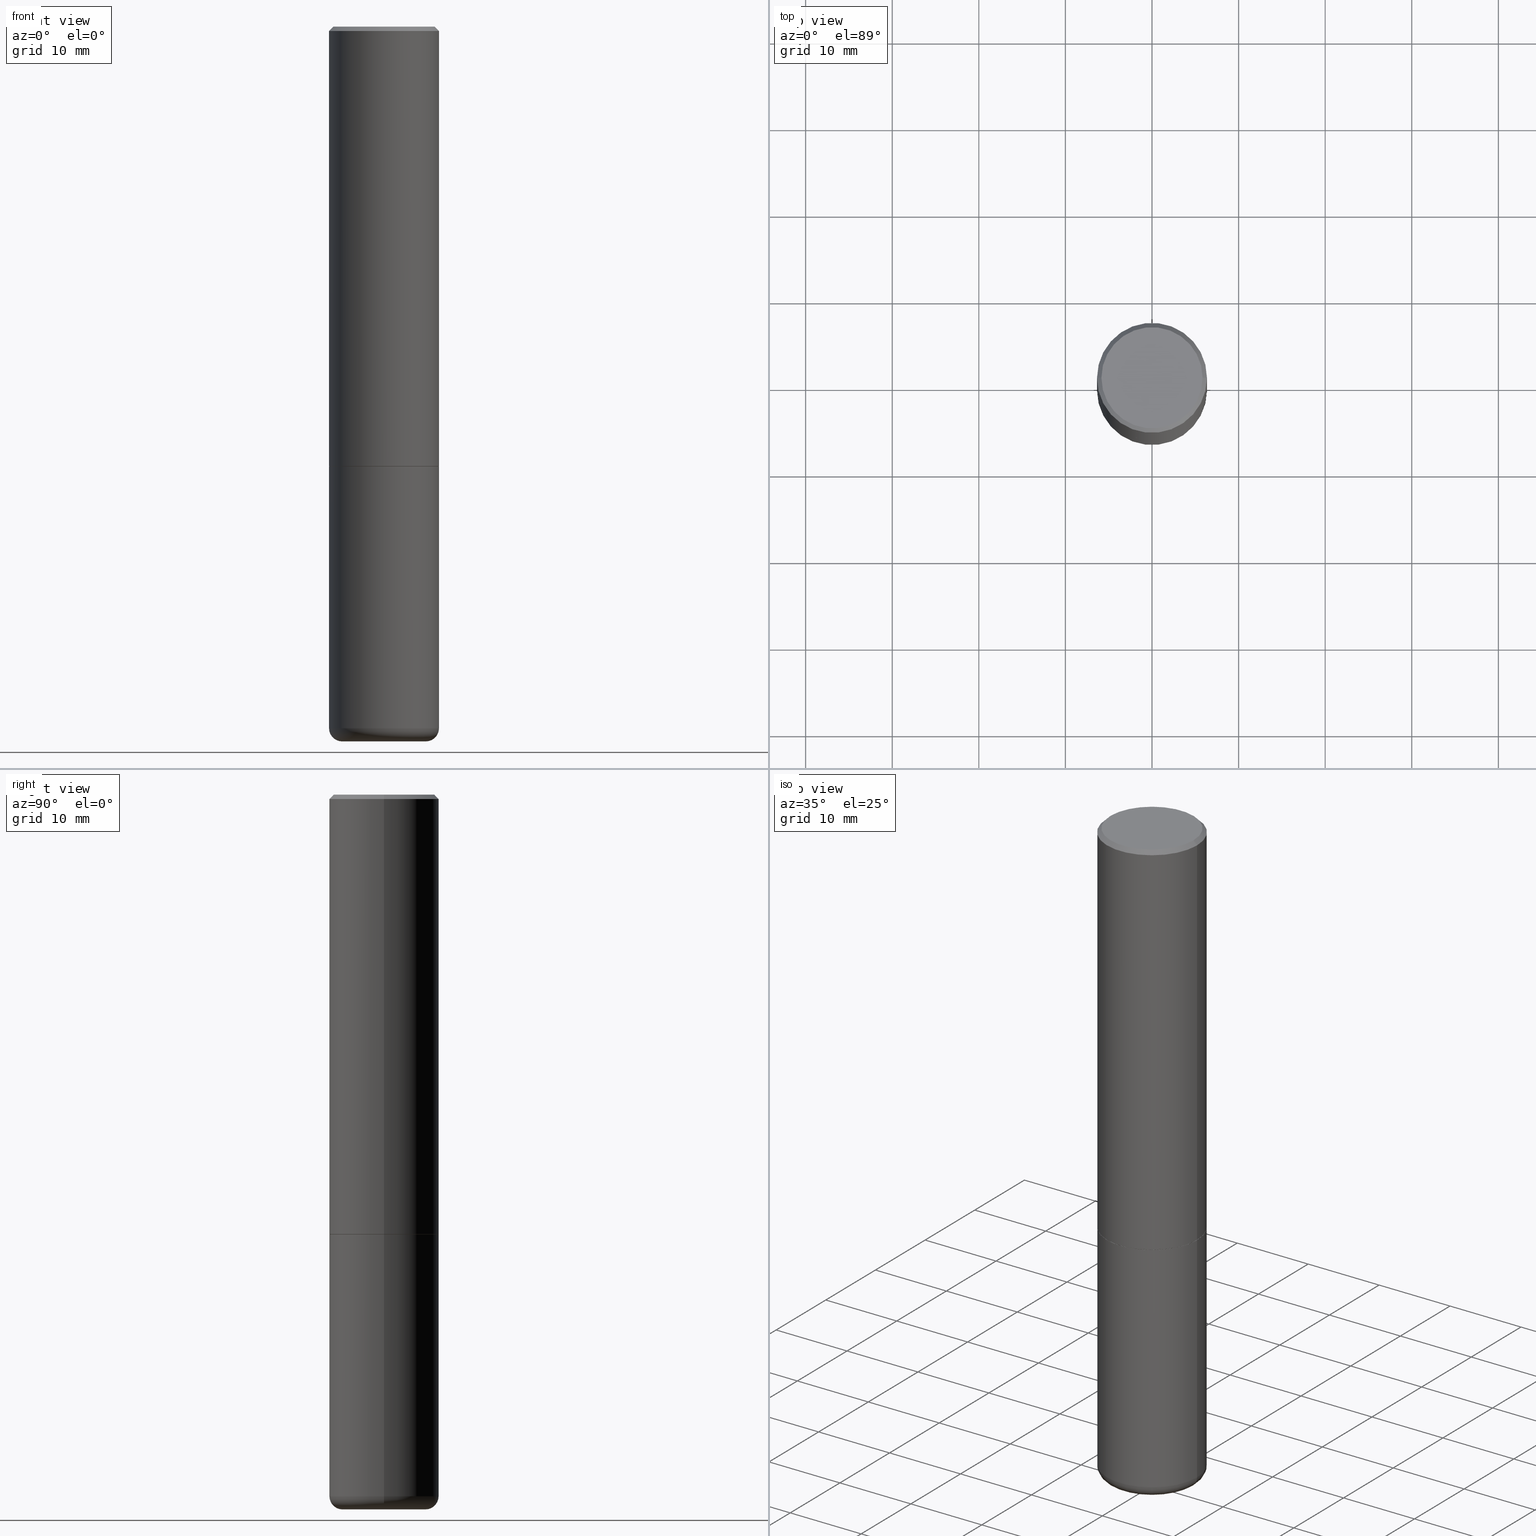
[diagram: canonical four-view strip — front | top / right | iso, engineering-drawing reading convention]
A machine part, canonical four-view strip (front | top / right | iso — engineering-drawing reading convention). The complete STEP part file that produces these views, byte-faithful:
ISO-10303-21;
HEADER;
FILE_DESCRIPTION (( 'STEP AP203' ),
    '1' );
FILE_NAME ('34780.STEP',
    '2022-11-02T20:16:34',
    ( '' ),
    ( '' ),
    'SwSTEP 2.0',
    'SolidWorks 2022',
    '' );
FILE_SCHEMA (( 'CONFIG_CONTROL_DESIGN' ));
ENDSEC;

DATA;
#1 =( NAMED_UNIT ( * ) SI_UNIT ( $, .STERADIAN. ) SOLID_ANGLE_UNIT ( ) );
#2 = APPROVAL_PERSON_ORGANIZATION ( #99, #250, #251 ) ;
#3 = DIRECTION ( 'NONE',  ( 1.000000000000000000, -6.982962677686265133E-15, 4.883557194083111780E-29 ) ) ;
#4 = ADVANCED_FACE ( 'NONE', ( #457 ), #92, .F. ) ;
#5 = EDGE_LOOP ( 'NONE', ( #60, #55, #91 ) ) ;
#6 = EDGE_CURVE ( 'NONE', #397, #482, #162, .T. ) ;
#7 = CONICAL_SURFACE ( 'NONE', #283, 0.1894764078700981180, 1.562069680534929894 ) ;
#8 = ORIENTED_EDGE ( 'NONE', *, *, #330, .F. ) ;
#9 = DIRECTION ( 'NONE',  ( -2.445468806185136597E-29, 3.491481338843145583E-15, 1.000000000000000000 ) ) ;
#10 = EDGE_LOOP ( 'NONE', ( #209, #26 ) ) ;
#11 = VECTOR ( 'NONE', #343, 39.37007874015748143 ) ;
#12 = PRODUCT_RELATED_PRODUCT_CATEGORY ( 'detail', '', ( #389 ) ) ;
#13 = CONICAL_SURFACE ( 'NONE', #331, 0.2489999999999996660, 0.7853981633974141952 ) ;
#14 = CIRCLE ( 'NONE', #87, 0.1894764078700981180 ) ;
#15 = ADVANCED_FACE ( 'NONE', ( #353 ), #431, .T. ) ;
#16 = ORIENTED_EDGE ( 'NONE', *, *, #367, .F. ) ;
#17 = DIRECTION ( 'NONE',  ( -2.445468806185136597E-29, 3.491481338843145583E-15, 1.000000000000000000 ) ) ;
#18 = ORIENTED_EDGE ( 'NONE', *, *, #312, .F. ) ;
#19 = ADVANCED_FACE ( 'NONE', ( #465 ), #136, .T. ) ;
#20 = ORIENTED_EDGE ( 'NONE', *, *, #396, .F. ) ;
#21 = APPROVAL_PERSON_ORGANIZATION ( #385, #471, #390 ) ;
#22 = DIRECTION ( 'NONE',  ( 1.000000000000000000, -6.982962677686265133E-15, 4.883557194083111780E-29 ) ) ;
#23 = ORIENTED_EDGE ( 'NONE', *, *, #57, .T. ) ;
#24 = DIRECTION ( 'NONE',  ( 1.000000000000000000, -6.982962677686266711E-15, 4.876176775795935232E-29 ) ) ;
#25 = FACE_OUTER_BOUND ( 'NONE', #308, .T. ) ;
#26 = ORIENTED_EDGE ( 'NONE', *, *, #360, .F. ) ;
#27 = DIRECTION ( 'NONE',  ( 1.000000000000000000, -6.982962677686269077E-15, 0.000000000000000000 ) ) ;
#28 = FACE_OUTER_BOUND ( 'NONE', #437, .T. ) ;
#29 = APPROVAL_DATE_TIME ( #192, #98 ) ;
#30 = EDGE_LOOP ( 'NONE', ( #242, #139, #284, #458 ) ) ;
#31 = DIRECTION ( 'NONE',  ( -2.445468806185136597E-29, 3.491481338843145583E-15, 1.000000000000000000 ) ) ;
#32 = CONICAL_SURFACE ( 'NONE', #112, 0.1628114078700980683, 1.535889741755009918 ) ;
#33 = APPROVAL_PERSON_ORGANIZATION ( #381, #98, #378 ) ;
#34 = LINE ( 'NONE', #148, #460 ) ;
#35 = DIMENSIONAL_EXPONENTS ( 1.000000000000000000, 0.000000000000000000, 0.000000000000000000, 0.000000000000000000, 0.000000000000000000, 0.000000000000000000, 0.000000000000000000 ) ;
#36 = FACE_OUTER_BOUND ( 'NONE', #319, .T. ) ;
#37 = DIRECTION ( 'NONE',  ( 1.000000000000000000, -6.982962677686266711E-15, 4.876176775795935793E-29 ) ) ;
#38 = DIRECTION ( 'NONE',  ( -2.445468806185136597E-29, 3.491481338843145583E-15, 1.000000000000000000 ) ) ;
#39 = DIRECTION ( 'NONE',  ( -2.445468806185136597E-29, 3.491481338843145583E-15, 1.000000000000000000 ) ) ;
#40 = CARTESIAN_POINT ( 'NONE',  ( 4.888492143564087591E-29, -6.979471196347447369E-15, -1.998999999999999888 ) ) ;
#41 = MANIFOLD_SOLID_BREP ( 'Body-Move/Copy2[2]', #153 ) ;
#42 = EDGE_CURVE ( 'NONE', #172, #382, #116, .T. ) ;
#43 = DIRECTION ( 'NONE',  ( 1.000000000000000000, -6.982962677686264344E-15, 0.000000000000000000 ) ) ;
#44 = CARTESIAN_POINT ( 'NONE',  ( -0.1894764078700981180, -1.002420766678126850E-14, -3.250000000000000000 ) ) ;
#45 = PERSON_AND_ORGANIZATION ( #480, #321 ) ;
#46 = CARTESIAN_POINT ( 'NONE',  ( 4.890937612370304688E-31, -6.982962677686337215E-17, -0.02000000000000013226 ) ) ;
#47 = CIRCLE ( 'NONE', #314, 0.2499999999999994171 ) ;
#48 =( GEOMETRIC_REPRESENTATION_CONTEXT ( 3 ) GLOBAL_UNCERTAINTY_ASSIGNED_CONTEXT ( ( #473 ) ) GLOBAL_UNIT_ASSIGNED_CONTEXT ( ( #446, #304, #1 ) ) REPRESENTATION_CONTEXT ( 'NONE', 'WORKASPACE' ) );
#49 = EDGE_LOOP ( 'NONE', ( #89, #168 ) ) ;
#50 = DESIGN_CONTEXT ( 'detailed design', #88, 'design' ) ;
#51 = PRODUCT_DEFINITION ( 'UNKNOWN', '', #315, #50 ) ;
#52 = CALENDAR_DATE ( 2022, 2, 11 ) ;
#53 = VECTOR ( 'NONE', #183, 39.37007874015748143 ) ;
#54 = DIRECTION ( 'NONE',  ( 1.000000000000000000, 0.000000000000000000, 0.000000000000000000 ) ) ;
#55 = ORIENTED_EDGE ( 'NONE', *, *, #42, .T. ) ;
#56 = DIRECTION ( 'NONE',  ( 0.000000000000000000, 0.000000000000000000, 1.000000000000000000 ) ) ;
#57 = EDGE_CURVE ( 'NONE', #318, #175, #34, .T. ) ;
#58 = ORIENTED_EDGE ( 'NONE', *, *, #160, .F. ) ;
#59 = DIRECTION ( 'NONE',  ( -2.445468806185136597E-29, 3.491481338843145583E-15, 1.000000000000000000 ) ) ;
#60 = ORIENTED_EDGE ( 'NONE', *, *, #269, .F. ) ;
#61 = ORIENTED_EDGE ( 'NONE', *, *, #354, .F. ) ;
#62 = CARTESIAN_POINT ( 'NONE',  ( -0.2499999999999994171, 1.675911042644699238E-15, -0.02000000000000013226 ) ) ;
#63 = COORDINATED_UNIVERSAL_TIME_OFFSET ( 5, 0, .BEHIND. ) ;
#64 = ORIENTED_EDGE ( 'NONE', *, *, #299, .F. ) ;
#65 = DIRECTION ( 'NONE',  ( 1.000000000000000000, -6.982962677686266711E-15, 4.876176775795935232E-29 ) ) ;
#66 = CONICAL_SURFACE ( 'NONE', #466, 0.1894764078700981180, 1.562069680534929894 ) ;
#67 = SECURITY_CLASSIFICATION ( '', '', #230 ) ;
#68 = PLANE ( 'NONE',  #373 ) ;
#69 = ORIENTED_EDGE ( 'NONE', *, *, #42, .F. ) ;
#70 = CARTESIAN_POINT ( 'NONE',  ( 4.890937612370304688E-31, -6.982962677686337215E-17, -0.02000000000000013226 ) ) ;
#71 = CARTESIAN_POINT ( 'NONE',  ( 0.2489999999999996660, -8.721720384430167884E-15, -2.000000000000000000 ) ) ;
#72 = ADVANCED_FACE ( 'NONE', ( #292 ), #485, .T. ) ;
#73 = DIRECTION ( 'NONE',  ( -2.445468806185136597E-29, 3.491481338843145583E-15, 1.000000000000000000 ) ) ;
#74 = DIRECTION ( 'NONE',  ( 1.000000000000000000, -6.982962677686262766E-15, 0.000000000000000000 ) ) ;
#75 = CARTESIAN_POINT ( 'NONE',  ( -0.1628114078700980683, -1.020959589213692009E-14, -3.249767298070359800 ) ) ;
#76 = APPROVAL_DATE_TIME ( #109, #250 ) ;
#77 = DIRECTION ( 'NONE',  ( -2.445468806185136597E-29, 3.491481338843145583E-15, 1.000000000000000000 ) ) ;
#78 = DIRECTION ( 'NONE',  ( -1.000000000000000000, 6.982962677686265922E-15, -4.876176775795935793E-29 ) ) ;
#79 = VECTOR ( 'NONE', #219, 39.37007874015748854 ) ;
#80 = AXIS2_PLACEMENT_3D ( 'NONE', #191, #368, #453 ) ;
#81 = CARTESIAN_POINT ( 'NONE',  ( 4.888492143564087591E-29, -6.979471196347447369E-15, -1.998999999999999888 ) ) ;
#82 = LENGTH_MEASURE_WITH_UNIT ( LENGTH_MEASURE( 0.02539999999999999897 ), #161 );
#83 = DIRECTION ( 'NONE',  ( 1.000000000000000000, -6.982962677686266711E-15, 4.876225828469324576E-29 ) ) ;
#84 = CARTESIAN_POINT ( 'NONE',  ( 7.947773620101693940E-29, -1.134731435124022443E-14, -3.250000000000000000 ) ) ;
#85 = CARTESIAN_POINT ( 'NONE',  ( 4.890937612370273194E-29, -6.982962677686291165E-15, -2.000000000000000000 ) ) ;
#86 = ORIENTED_EDGE ( 'NONE', *, *, #428, .F. ) ;
#87 = AXIS2_PLACEMENT_3D ( 'NONE', #370, #302, #270 ) ;
#88 = APPLICATION_CONTEXT ( 'configuration controlled 3d designs of mechanical parts and assemblies' ) ;
#89 = ORIENTED_EDGE ( 'NONE', *, *, #422, .T. ) ;
#90 = CC_DESIGN_PERSON_AND_ORGANIZATION_ASSIGNMENT ( #334, #184, ( #315 ) ) ;
#91 = ORIENTED_EDGE ( 'NONE', *, *, #189, .F. ) ;
#92 = PLANE ( 'NONE',  #205 ) ;
#93 = CIRCLE ( 'NONE', #135, 0.2500000000000000000 ) ;
#94 = CIRCLE ( 'NONE', #477, 0.2489999999999996660 ) ;
#95 = EDGE_CURVE ( 'NONE', #175, #482, #414, .T. ) ;
#96 = DIRECTION ( 'NONE',  ( 1.000000000000000000, -6.982962677686268288E-15, 0.000000000000000000 ) ) ;
#97 = CARTESIAN_POINT ( 'NONE',  ( 0.1894764078700981180, -1.264721686805797375E-14, -3.250000000000000000 ) ) ;
#98 = APPROVAL ( #263, 'UNSPECIFIED' ) ;
#99 = PERSON_AND_ORGANIZATION ( #480, #321 ) ;
#100 = ORIENTED_EDGE ( 'NONE', *, *, #180, .F. ) ;
#101 = CARTESIAN_POINT ( 'NONE',  ( 0.2299999999999992606, -1.681434332853594870E-15, 4.268512490111905999E-18 ) ) ;
#102 = VERTEX_POINT ( 'NONE', #71 ) ;
#103 = AXIS2_PLACEMENT_3D ( 'NONE', #117, #234, #420 ) ;
#104 = DIRECTION ( 'NONE',  ( 2.438088387897960049E-29, -3.491481338843145188E-15, -1.000000000000000000 ) ) ;
#105 = CC_DESIGN_PERSON_AND_ORGANIZATION_ASSIGNMENT ( #198, #432, ( #51 ) ) ;
#106 = DIRECTION ( 'NONE',  ( -2.445468806185136597E-29, 3.491481338843145583E-15, 1.000000000000000000 ) ) ;
#107 = FACE_OUTER_BOUND ( 'NONE', #425, .T. ) ;
#108 = CARTESIAN_POINT ( 'NONE',  ( -0.2499999999999996114, -1.748293572161906447E-15, -1.998999999999999888 ) ) ;
#109 = DATE_AND_TIME ( #225, #300 ) ;
#110 = CARTESIAN_POINT ( 'NONE',  ( 0.1628114078700980683, -1.246346921450254343E-14, -3.249767298070359800 ) ) ;
#111 = DIRECTION ( 'NONE',  ( -6.982962677686266711E-15, -1.000000000000000000, 3.491481338843145583E-15 ) ) ;
#112 = AXIS2_PLACEMENT_3D ( 'NONE', #149, #223, #268 ) ;
#113 = CARTESIAN_POINT ( 'NONE',  ( 0.000000000000000000, 0.000000000000000000, 0.000000000000000000 ) ) ;
#114 = CIRCLE ( 'NONE', #186, 0.2499999999999996669 ) ;
#115 = CARTESIAN_POINT ( 'NONE',  ( 0.2499999999999994171, -1.784954126219742244E-15, -0.02000000000000013226 ) ) ;
#116 = LINE ( 'NONE', #409, #11 ) ;
#117 = CARTESIAN_POINT ( 'NONE',  ( -1.043851414335219820E-46, 1.490343170380447200E-32, 4.268512490100411279E-18 ) ) ;
#118 = CALENDAR_DATE ( 2022, 2, 11 ) ;
#119 = DIRECTION ( 'NONE',  ( 1.000000000000000000, -6.982962677686264344E-15, 0.000000000000000000 ) ) ;
#120 = ORIENTED_EDGE ( 'NONE', *, *, #421, .F. ) ;
#121 = AXIS2_PLACEMENT_3D ( 'NONE', #215, #412, #22 ) ;
#122 = CALENDAR_DATE ( 2022, 2, 11 ) ;
#123 = ORIENTED_EDGE ( 'NONE', *, *, #367, .T. ) ;
#124 = ADVANCED_FACE ( 'NONE', ( #433 ), #289, .T. ) ;
#125 = APPLICATION_PROTOCOL_DEFINITION ( 'international standard', 'config_control_design', 1994, #88 ) ;
#126 = AXIS2_PLACEMENT_3D ( 'NONE', #286, #38, #260 ) ;
#127 = CC_DESIGN_APPROVAL ( #98, ( #67 ) ) ;
#128 = ORIENTED_EDGE ( 'NONE', *, *, #243, .T. ) ;
#129 = DIRECTION ( 'NONE',  ( -2.445468806185136597E-29, 3.491481338843145583E-15, 1.000000000000000000 ) ) ;
#130 = DIRECTION ( 'NONE',  ( -2.445468806185136877E-29, 3.491481338843145188E-15, 1.000000000000000000 ) ) ;
#131 = ORIENTED_EDGE ( 'NONE', *, *, #235, .F. ) ;
#132 = ORIENTED_EDGE ( 'NONE', *, *, #428, .T. ) ;
#133 = APPROVAL_STATUS ( 'not_yet_approved' ) ;
#134 = ORIENTED_EDGE ( 'NONE', *, *, #354, .T. ) ;
#135 = AXIS2_PLACEMENT_3D ( 'NONE', #408, #31, #74 ) ;
#136 = CONICAL_SURFACE ( 'NONE', #185, 0.2489999999999996660, 0.7853981633974141952 ) ;
#137 = ORIENTED_EDGE ( 'NONE', *, *, #479, .T. ) ;
#138 = DIRECTION ( 'NONE',  ( -2.445468806185136877E-29, 3.491481338843145188E-15, 1.000000000000000000 ) ) ;
#139 = ORIENTED_EDGE ( 'NONE', *, *, #422, .F. ) ;
#140 = EDGE_CURVE ( 'NONE', #318, #397, #93, .T. ) ;
#141 = ADVANCED_FACE ( 'NONE', ( #107 ), #413, .F. ) ;
#142 = CARTESIAN_POINT ( 'NONE',  ( -0.2489999999999996660, -5.213711265643644864E-15, -2.000000000000000000 ) ) ;
#143 = AXIS2_PLACEMENT_3D ( 'NONE', #244, #59, #27 ) ;
#144 = CC_DESIGN_APPROVAL ( #250, ( #315 ) ) ;
#145 = CARTESIAN_POINT ( 'NONE',  ( 0.000000000000000000, 0.000000000000000000, 0.000000000000000000 ) ) ;
#146 = FACE_OUTER_BOUND ( 'NONE', #5, .T. ) ;
#147 = DIRECTION ( 'NONE',  ( 1.000000000000000000, -6.982962677686268288E-15, 0.000000000000000000 ) ) ;
#148 = CARTESIAN_POINT ( 'NONE',  ( -0.2499999999999998335, 1.776356839400249281E-15, -1.229733772563725605E-29 ) ) ;
#149 = CARTESIAN_POINT ( 'NONE',  ( 7.947204554791619182E-29, -1.134650187679537143E-14, -3.249767298070359800 ) ) ;
#150 = PERSON_AND_ORGANIZATION_ROLE ( 'design_supplier' ) ;
#151 = LINE ( 'NONE', #232, #388 ) ;
#152 = CARTESIAN_POINT ( 'NONE',  ( 4.890937612370304688E-31, -6.982962677686337215E-17, -0.02000000000000013226 ) ) ;
#153 = CLOSED_SHELL ( 'NONE', ( #313, #72, #384, #416, #279, #19, #4, #261 ) ) ;
#154 = AXIS2_PLACEMENT_3D ( 'NONE', #227, #376, #401 ) ;
#155 = CIRCLE ( 'NONE', #366, 0.2499999999999994171 ) ;
#156 = DIRECTION ( 'NONE',  ( 2.445468806185136597E-29, -3.491481338843145583E-15, -1.000000000000000000 ) ) ;
#157 = ADVANCED_BREP_SHAPE_REPRESENTATION ( '34780', ( #362, #41, #342 ), #48 ) ;
#158 = DIRECTION ( 'NONE',  ( -2.445468806185136597E-29, 3.491481338843145583E-15, 1.000000000000000000 ) ) ;
#159 = ORIENTED_EDGE ( 'NONE', *, *, #6, .F. ) ;
#160 = EDGE_CURVE ( 'NONE', #469, #318, #365, .T. ) ;
#161 =( LENGTH_UNIT ( ) NAMED_UNIT ( * ) SI_UNIT ( $, .METRE. ) );
#162 = LINE ( 'NONE', #426, #213 ) ;
#163 = ORIENTED_EDGE ( 'NONE', *, *, #396, .T. ) ;
#164 = PERSON_AND_ORGANIZATION ( #480, #321 ) ;
#165 = AXIS2_PLACEMENT_3D ( 'NONE', #229, #181, #83 ) ;
#166 = COORDINATED_UNIVERSAL_TIME_OFFSET ( 5, 0, .BEHIND. ) ;
#167 = CC_DESIGN_DATE_AND_TIME_ASSIGNMENT ( #275, #434, ( #51 ) ) ;
#168 = ORIENTED_EDGE ( 'NONE', *, *, #338, .T. ) ;
#169 = ORIENTED_EDGE ( 'NONE', *, *, #95, .T. ) ;
#170 = CONICAL_SURFACE ( 'NONE', #80, 0.2499999999999994171, 0.7853981633974489451 ) ;
#171 = FACE_OUTER_BOUND ( 'NONE', #273, .T. ) ;
#172 = VERTEX_POINT ( 'NONE', #372 ) ;
#173 = CC_DESIGN_PERSON_AND_ORGANIZATION_ASSIGNMENT ( #164, #307, ( #389 ) ) ;
#174 = ORIENTED_EDGE ( 'NONE', *, *, #160, .T. ) ;
#175 = VERTEX_POINT ( 'NONE', #392 ) ;
#176 = CLOSED_SHELL ( 'NONE', ( #274, #124, #15, #141, #322, #195, #441, #402, #345 ) ) ;
#177 = TOROIDAL_SURFACE ( 'NONE', #375, 0.1900000000000002243, 0.05999999999999995615 ) ;
#178 = CARTESIAN_POINT ( 'NONE',  ( 7.947204554791619182E-29, -1.134650187679537143E-14, -3.249767298070359800 ) ) ;
#179 = EDGE_LOOP ( 'NONE', ( #132, #169 ) ) ;
#180 = EDGE_CURVE ( 'NONE', #382, #249, #341, .T. ) ;
#181 = DIRECTION ( 'NONE',  ( -2.445468806185136597E-29, 3.491481338843145583E-15, 1.000000000000000000 ) ) ;
#182 = DATE_TIME_ROLE ( 'classification_date' ) ;
#183 = DIRECTION ( 'NONE',  ( -2.445468806185136877E-29, 3.491481338843145188E-15, 1.000000000000000000 ) ) ;
#184 = PERSON_AND_ORGANIZATION_ROLE ( 'creator' ) ;
#185 = AXIS2_PLACEMENT_3D ( 'NONE', #459, #39, #43 ) ;
#186 = AXIS2_PLACEMENT_3D ( 'NONE', #85, #221, #147 ) ;
#187 = DIRECTION ( 'NONE',  ( 7.105427357601001859E-15, 1.000000000000000000, -3.491481338843145583E-15 ) ) ;
#188 = LINE ( 'NONE', #369, #248 ) ;
#189 = EDGE_CURVE ( 'NONE', #249, #382, #199, .T. ) ;
#190 = DIRECTION ( 'NONE',  ( 1.000000000000000000, -6.982962677686264344E-15, 0.000000000000000000 ) ) ;
#191 = CARTESIAN_POINT ( 'NONE',  ( 4.890937612370304688E-31, -6.982962677686337215E-17, -0.02000000000000013226 ) ) ;
#192 = DATE_AND_TIME ( #118, #424 ) ;
#193 = CARTESIAN_POINT ( 'NONE',  ( 4.890937612370273194E-29, -6.982962677686291165E-15, -2.000000000000000000 ) ) ;
#194 = PRODUCT_DEFINITION_SHAPE ( 'NONE', 'NONE',  #51 ) ;
#195 = ADVANCED_FACE ( 'NONE', ( #483 ), #68, .F. ) ;
#196 = CARTESIAN_POINT ( 'NONE',  ( 0.2499999999999996669, -8.728703347107855476E-15, -2.000000000000000000 ) ) ;
#197 = VERTEX_POINT ( 'NONE', #481 ) ;
#198 = PERSON_AND_ORGANIZATION ( #480, #321 ) ;
#199 = CIRCLE ( 'NONE', #380, 0.1628114078700980683 ) ;
#200 = CIRCLE ( 'NONE', #394, 0.2499999999999996669 ) ;
#201 = APPROVAL_DATE_TIME ( #309, #471 ) ;
#202 = EDGE_LOOP ( 'NONE', ( #355, #174, #131, #287 ) ) ;
#203 = ORIENTED_EDGE ( 'NONE', *, *, #211, .F. ) ;
#204 = DIRECTION ( 'NONE',  ( 0.9993908270190957621, -6.978169709227541488E-15, -0.03489949670250108021 ) ) ;
#205 = AXIS2_PLACEMENT_3D ( 'NONE', #311, #237, #344 ) ;
#206 = CARTESIAN_POINT ( 'NONE',  ( 7.947204554791619182E-29, -1.134650187679537143E-14, -3.249767298070359800 ) ) ;
#207 = AXIS2_PLACEMENT_3D ( 'NONE', #178, #288, #218 ) ;
#208 = LOCAL_TIME ( 16, 16, 34.00000000000000000, #220 ) ;
#209 = ORIENTED_EDGE ( 'NONE', *, *, #479, .F. ) ;
#210 = ORIENTED_EDGE ( 'NONE', *, *, #140, .T. ) ;
#211 = EDGE_CURVE ( 'NONE', #429, #352, #406, .T. ) ;
#212 = ORIENTED_EDGE ( 'NONE', *, *, #350, .F. ) ;
#213 = VECTOR ( 'NONE', #130, 39.37007874015748143 ) ;
#214 = CIRCLE ( 'NONE', #266, 0.1894764078700981180 ) ;
#215 = CARTESIAN_POINT ( 'NONE',  ( 7.801051078688113029E-29, -1.113783344760428697E-14, -3.190002284616149542 ) ) ;
#216 = ORIENTED_EDGE ( 'NONE', *, *, #438, .F. ) ;
#217 = DIRECTION ( 'NONE',  ( -2.445468806185136597E-29, 3.491481338843145583E-15, 1.000000000000000000 ) ) ;
#218 = DIRECTION ( 'NONE',  ( -1.000000000000000000, 6.982962677686269077E-15, 0.000000000000000000 ) ) ;
#219 = DIRECTION ( 'NONE',  ( 0.7071067811865232589, -2.468850131082003836E-15, 0.7071067811865715536 ) ) ;
#220 = COORDINATED_UNIVERSAL_TIME_OFFSET ( 5, 0, .BEHIND. ) ;
#221 = DIRECTION ( 'NONE',  ( -2.445468806185136597E-29, 3.491481338843145583E-15, 1.000000000000000000 ) ) ;
#222 = CARTESIAN_POINT ( 'NONE',  ( 4.890937612370273194E-29, -6.982962677686291165E-15, -2.000000000000000000 ) ) ;
#223 = DIRECTION ( 'NONE',  ( 2.445468806185136597E-29, -3.491481338843145583E-15, -1.000000000000000000 ) ) ;
#224 = CC_DESIGN_DATE_AND_TIME_ASSIGNMENT ( #371, #182, ( #67 ) ) ;
#225 = CALENDAR_DATE ( 2022, 2, 11 ) ;
#226 = CIRCLE ( 'NONE', #387, 0.05999999999999997696 ) ;
#227 = CARTESIAN_POINT ( 'NONE',  ( 1.606081415867835940E-15, 0.2299999999999992606, -8.009064516888707148E-16 ) ) ;
#228 = APPLICATION_CONTEXT ( 'configuration controlled 3d designs of mechanical parts and assemblies' ) ;
#229 = CARTESIAN_POINT ( 'NONE',  ( -1.043851414335219820E-46, 1.490343170380447200E-32, 4.268512490100411279E-18 ) ) ;
#230 = SECURITY_CLASSIFICATION_LEVEL ( 'unclassified' ) ;
#231 = LINE ( 'NONE', #379, #79 ) ;
#232 = CARTESIAN_POINT ( 'NONE',  ( -0.2499999999999994171, 1.675911042644699238E-15, -0.02000000000000013226 ) ) ;
#233 = CC_DESIGN_PERSON_AND_ORGANIZATION_ASSIGNMENT ( #45, #150, ( #315 ) ) ;
#234 = DIRECTION ( 'NONE',  ( -2.445468806185136597E-29, 3.491481338843145583E-15, 1.000000000000000000 ) ) ;
#235 = EDGE_CURVE ( 'NONE', #397, #318, #450, .T. ) ;
#236 = AXIS2_PLACEMENT_3D ( 'NONE', #281, #9, #245 ) ;
#237 = DIRECTION ( 'NONE',  ( -2.438088387897960049E-29, 3.491481338843145188E-15, 1.000000000000000000 ) ) ;
#238 = AXIS2_PLACEMENT_3D ( 'NONE', #410, #377, #442 ) ;
#239 = ORIENTED_EDGE ( 'NONE', *, *, #312, .T. ) ;
#240 = VECTOR ( 'NONE', #447, 39.37007874015748854 ) ;
#241 = EDGE_LOOP ( 'NONE', ( #474, #430, #359, #61 ) ) ;
#242 = ORIENTED_EDGE ( 'NONE', *, *, #243, .F. ) ;
#243 = EDGE_CURVE ( 'NONE', #254, #352, #439, .T. ) ;
#244 = CARTESIAN_POINT ( 'NONE',  ( 7.947204554791619182E-29, -1.134650187679537143E-14, -3.249767298070359800 ) ) ;
#245 = DIRECTION ( 'NONE',  ( 1.000000000000000000, -6.982962677686266711E-15, 4.876176775795935793E-29 ) ) ;
#246 = DIRECTION ( 'NONE',  ( 2.445468806185136597E-29, -3.491481338843145583E-15, -1.000000000000000000 ) ) ;
#247 = EDGE_LOOP ( 'NONE', ( #399, #316, #18, #203 ) ) ;
#248 = VECTOR ( 'NONE', #204, 39.37007874015748143 ) ;
#249 = VERTEX_POINT ( 'NONE', #110 ) ;
#250 = APPROVAL ( #133, 'UNSPECIFIED' ) ;
#251 = APPROVAL_ROLE ( '' ) ;
#252 = EDGE_LOOP ( 'NONE', ( #305, #128, #239, #216 ) ) ;
#253 = FACE_OUTER_BOUND ( 'NONE', #49, .T. ) ;
#254 = VERTEX_POINT ( 'NONE', #101 ) ;
#255 = AXIS2_PLACEMENT_3D ( 'NONE', #400, #17, #65 ) ;
#256 = CARTESIAN_POINT ( 'NONE',  ( 0.1894764078700981180, -1.267042103569917877E-14, -3.250000000000000000 ) ) ;
#257 = CC_DESIGN_APPROVAL ( #471, ( #51 ) ) ;
#258 = CARTESIAN_POINT ( 'NONE',  ( 0.2499999999999995282, -1.745740669421563325E-15, 1.219044193948981566E-29 ) ) ;
#259 = DIRECTION ( 'NONE',  ( -1.000000000000000000, 6.982962677686266711E-15, 0.000000000000000000 ) ) ;
#260 = DIRECTION ( 'NONE',  ( 1.000000000000000000, -6.982962677686262766E-15, 0.000000000000000000 ) ) ;
#261 = ADVANCED_FACE ( 'NONE', ( #253 ), #264, .F. ) ;
#262 = DIRECTION ( 'NONE',  ( 1.000000000000000000, -6.982962677686270655E-15, 0.000000000000000000 ) ) ;
#263 = APPROVAL_STATUS ( 'not_yet_approved' ) ;
#264 = PLANE ( 'NONE',  #154 ) ;
#265 = DIRECTION ( 'NONE',  ( 1.000000000000000000, -6.982962677686266711E-15, 0.000000000000000000 ) ) ;
#266 = AXIS2_PLACEMENT_3D ( 'NONE', #84, #77, #303 ) ;
#267 = DIRECTION ( 'NONE',  ( -2.445468806185136597E-29, 3.491481338843145583E-15, 1.000000000000000000 ) ) ;
#268 = DIRECTION ( 'NONE',  ( -1.000000000000000000, 6.982962677686269077E-15, 0.000000000000000000 ) ) ;
#269 = EDGE_CURVE ( 'NONE', #172, #249, #188, .T. ) ;
#270 = DIRECTION ( 'NONE',  ( 1.000000000000000000, -6.982962677686261977E-15, 0.000000000000000000 ) ) ;
#271 = AXIS2_PLACEMENT_3D ( 'NONE', #325, #187, #440 ) ;
#272 = ORIENTED_EDGE ( 'NONE', *, *, #435, .T. ) ;
#273 = EDGE_LOOP ( 'NONE', ( #346, #123, #391, #364 ) ) ;
#274 = ADVANCED_FACE ( 'NONE', ( #356 ), #66, .F. ) ;
#275 = DATE_AND_TIME ( #122, #467 ) ;
#276 = VERTEX_POINT ( 'NONE', #62 ) ;
#277 = AXIS2_PLACEMENT_3D ( 'NONE', #222, #490, #96 ) ;
#278 = AXIS2_PLACEMENT_3D ( 'NONE', #152, #156, #259 ) ;
#279 = ADVANCED_FACE ( 'NONE', ( #171 ), #436, .T. ) ;
#280 = ORIENTED_EDGE ( 'NONE', *, *, #189, .T. ) ;
#281 = CARTESIAN_POINT ( 'NONE',  ( 0.000000000000000000, 0.000000000000000000, 0.000000000000000000 ) ) ;
#282 = ORIENTED_EDGE ( 'NONE', *, *, #57, .F. ) ;
#283 = AXIS2_PLACEMENT_3D ( 'NONE', #449, #332, #336 ) ;
#284 = ORIENTED_EDGE ( 'NONE', *, *, #438, .T. ) ;
#285 = DIRECTION ( 'NONE',  ( -1.000000000000000000, 6.982962677686261977E-15, 0.000000000000000000 ) ) ;
#286 = CARTESIAN_POINT ( 'NONE',  ( 7.801051078688113029E-29, -1.113783344760428697E-14, -3.190002284616149542 ) ) ;
#287 = ORIENTED_EDGE ( 'NONE', *, *, #348, .F. ) ;
#288 = DIRECTION ( 'NONE',  ( 2.445468806185136597E-29, -3.491481338843145583E-15, -1.000000000000000000 ) ) ;
#289 = TOROIDAL_SURFACE ( 'NONE', #121, 0.1900000000000002243, 0.05999999999999995615 ) ;
#290 = DIRECTION ( 'NONE',  ( -0.9999619230641714207, 6.952228252019186602E-15, -0.008726535498369011531 ) ) ;
#291 = VECTOR ( 'NONE', #492, 39.37007874015748854 ) ;
#292 = FACE_OUTER_BOUND ( 'NONE', #247, .T. ) ;
#293 = DIRECTION ( 'NONE',  ( 1.000000000000000000, -6.982962677686264344E-15, 0.000000000000000000 ) ) ;
#294 = SHAPE_DEFINITION_REPRESENTATION ( #194, #157 ) ;
#295 = CARTESIAN_POINT ( 'NONE',  ( 0.2499999999999994171, -1.784954126219742244E-15, -0.02000000000000013226 ) ) ;
#296 = LINE ( 'NONE', #419, #53 ) ;
#297 = CYLINDRICAL_SURFACE ( 'NONE', #358, 0.2499999999999998335 ) ;
#298 = CARTESIAN_POINT ( 'NONE',  ( 7.801051078688113029E-29, -1.113783344760428697E-14, -3.190002284616149542 ) ) ;
#299 = EDGE_CURVE ( 'NONE', #249, #417, #317, .T. ) ;
#300 = LOCAL_TIME ( 16, 16, 34.00000000000000000, #63 ) ;
#301 = FACE_OUTER_BOUND ( 'NONE', #361, .T. ) ;
#302 = DIRECTION ( 'NONE',  ( -2.445468806185136597E-29, 3.491481338843145583E-15, 1.000000000000000000 ) ) ;
#303 = DIRECTION ( 'NONE',  ( 1.000000000000000000, -6.982962677686261977E-15, 0.000000000000000000 ) ) ;
#304 =( NAMED_UNIT ( * ) PLANE_ANGLE_UNIT ( ) SI_UNIT ( $, .RADIAN. ) );
#305 = ORIENTED_EDGE ( 'NONE', *, *, #338, .F. ) ;
#306 = CIRCLE ( 'NONE', #320, 0.2499999999999996669 ) ;
#307 = PERSON_AND_ORGANIZATION_ROLE ( 'design_owner' ) ;
#308 = EDGE_LOOP ( 'NONE', ( #137, #163, #8, #212 ) ) ;
#309 = DATE_AND_TIME ( #52, #461 ) ;
#310 = APPLICATION_PROTOCOL_DEFINITION ( 'international standard', 'config_control_design', 1994, #228 ) ;
#311 = CARTESIAN_POINT ( 'NONE',  ( 4.890937612370273194E-29, -6.982962677686291165E-15, -2.000000000000000000 ) ) ;
#312 = EDGE_CURVE ( 'NONE', #352, #276, #47, .T. ) ;
#313 = ADVANCED_FACE ( 'NONE', ( #25 ), #13, .T. ) ;
#314 = AXIS2_PLACEMENT_3D ( 'NONE', #70, #491, #265 ) ;
#315 = PRODUCT_DEFINITION_FORMATION_WITH_SPECIFIED_SOURCE ( 'ANY', '', #389, .NOT_KNOWN. ) ;
#316 = ORIENTED_EDGE ( 'NONE', *, *, #327, .T. ) ;
#317 = LINE ( 'NONE', #97, #475 ) ;
#318 = VERTEX_POINT ( 'NONE', #415 ) ;
#319 = EDGE_LOOP ( 'NONE', ( #58, #272, #427, #463 ) ) ;
#320 = AXIS2_PLACEMENT_3D ( 'NONE', #81, #73, #293 ) ;
#321 = ORGANIZATION ( 'UNSPECIFIED', 'UNSPECIFIED', '' ) ;
#322 = ADVANCED_FACE ( 'NONE', ( #146 ), #32, .F. ) ;
#323 = DIRECTION ( 'NONE',  ( 1.000000000000000000, -6.982962677686269077E-15, 0.000000000000000000 ) ) ;
#324 = ORIENTED_EDGE ( 'NONE', *, *, #269, .T. ) ;
#325 = CARTESIAN_POINT ( 'NONE',  ( -0.1900000000000002243, -9.787802249660095416E-15, -3.190002284616149542 ) ) ;
#326 = LINE ( 'NONE', #44, #351 ) ;
#327 = EDGE_CURVE ( 'NONE', #347, #276, #296, .T. ) ;
#328 = PERSON_AND_ORGANIZATION ( #480, #321 ) ;
#329 = DIRECTION ( 'NONE',  ( -2.445468806185136877E-29, 3.491481338843145188E-15, 1.000000000000000000 ) ) ;
#330 = EDGE_CURVE ( 'NONE', #429, #347, #306, .T. ) ;
#331 = AXIS2_PLACEMENT_3D ( 'NONE', #444, #217, #407 ) ;
#332 = DIRECTION ( 'NONE',  ( 2.445468806185136597E-29, -3.491481338843145583E-15, -1.000000000000000000 ) ) ;
#333 = CIRCLE ( 'NONE', #103, 0.2299999999999992606 ) ;
#334 = PERSON_AND_ORGANIZATION ( #480, #321 ) ;
#335 = DIRECTION ( 'NONE',  ( -0.7071067811865479058, 2.468850131082261399E-15, -0.7071067811865470176 ) ) ;
#336 = DIRECTION ( 'NONE',  ( -1.000000000000000000, 6.982962677686261977E-15, 0.000000000000000000 ) ) ;
#337 = ORIENTED_EDGE ( 'NONE', *, *, #360, .T. ) ;
#338 = EDGE_CURVE ( 'NONE', #254, #395, #393, .T. ) ;
#339 = FACE_OUTER_BOUND ( 'NONE', #252, .T. ) ;
#340 = CARTESIAN_POINT ( 'NONE',  ( 0.2500000000000000000, -1.288357411702585207E-14, -3.190002284616149542 ) ) ;
#341 = CIRCLE ( 'NONE', #143, 0.1628114078700980683 ) ;
#342 = AXIS2_PLACEMENT_3D ( 'NONE', #456, #56, #54 ) ;
#343 = DIRECTION ( 'NONE',  ( -0.9993908270190957621, 6.856857904024556470E-15, -0.03489949670250108021 ) ) ;
#344 = DIRECTION ( 'NONE',  ( 1.000000000000000000, -6.982962677686265922E-15, 4.876176775795935793E-29 ) ) ;
#345 = ADVANCED_FACE ( 'NONE', ( #28 ), #7, .F. ) ;
#346 = ORIENTED_EDGE ( 'NONE', *, *, #327, .F. ) ;
#347 = VERTEX_POINT ( 'NONE', #108 ) ;
#348 = EDGE_CURVE ( 'NONE', #417, #397, #226, .T. ) ;
#349 = MECHANICAL_CONTEXT ( 'NONE', #228, 'mechanical' ) ;
#350 = EDGE_CURVE ( 'NONE', #102, #429, #231, .T. ) ;
#351 = VECTOR ( 'NONE', #290, 39.37007874015748854 ) ;
#352 = VERTEX_POINT ( 'NONE', #115 ) ;
#353 = FACE_OUTER_BOUND ( 'NONE', #386, .T. ) ;
#354 = EDGE_CURVE ( 'NONE', #382, #469, #326, .T. ) ;
#355 = ORIENTED_EDGE ( 'NONE', *, *, #421, .T. ) ;
#356 = FACE_OUTER_BOUND ( 'NONE', #241, .T. ) ;
#357 = AXIS2_PLACEMENT_3D ( 'NONE', #145, #363, #24 ) ;
#358 = AXIS2_PLACEMENT_3D ( 'NONE', #113, #267, #37 ) ;
#359 = ORIENTED_EDGE ( 'NONE', *, *, #435, .F. ) ;
#360 = EDGE_CURVE ( 'NONE', #197, #102, #486, .T. ) ;
#361 = EDGE_LOOP ( 'NONE', ( #282, #210, #383, #478 ) ) ;
#362 = MANIFOLD_SOLID_BREP ( 'Body-Move/Copy2[1]', #176 ) ;
#363 = DIRECTION ( 'NONE',  ( -2.445468806185136597E-29, 3.491481338843145583E-15, 1.000000000000000000 ) ) ;
#364 = ORIENTED_EDGE ( 'NONE', *, *, #448, .F. ) ;
#365 = CIRCLE ( 'NONE', #271, 0.05999999999999997696 ) ;
#366 = AXIS2_PLACEMENT_3D ( 'NONE', #46, #418, #455 ) ;
#367 = EDGE_CURVE ( 'NONE', #347, #429, #200, .T. ) ;
#368 = DIRECTION ( 'NONE',  ( 2.445468806185136597E-29, -3.491481338843145583E-15, -1.000000000000000000 ) ) ;
#369 = CARTESIAN_POINT ( 'NONE',  ( 0.1628114078700980683, -1.246346921450254343E-14, -3.249767298070359800 ) ) ;
#370 = CARTESIAN_POINT ( 'NONE',  ( 7.947773620101693940E-29, -1.134731435124022443E-14, -3.250000000000000000 ) ) ;
#371 = DATE_AND_TIME ( #488, #208 ) ;
#372 = CARTESIAN_POINT ( 'NONE',  ( 7.932314907523952830E-29, -1.132806297626095311E-14, -3.244081798425500818 ) ) ;
#373 = AXIS2_PLACEMENT_3D ( 'NONE', #443, #104, #78 ) ;
#374 = LINE ( 'NONE', #142, #291 ) ;
#375 = AXIS2_PLACEMENT_3D ( 'NONE', #298, #106, #3 ) ;
#376 = DIRECTION ( 'NONE',  ( 2.438088387897960049E-29, -3.491481338843145188E-15, -1.000000000000000000 ) ) ;
#377 = DIRECTION ( 'NONE',  ( -2.445468806185136597E-29, 3.491481338843145583E-15, 1.000000000000000000 ) ) ;
#378 = APPROVAL_ROLE ( '' ) ;
#379 = CARTESIAN_POINT ( 'NONE',  ( 0.2489999999999996660, -8.721720384430167884E-15, -2.000000000000000000 ) ) ;
#380 = AXIS2_PLACEMENT_3D ( 'NONE', #206, #129, #323 ) ;
#381 = PERSON_AND_ORGANIZATION ( #480, #321 ) ;
#382 = VERTEX_POINT ( 'NONE', #75 ) ;
#383 = ORIENTED_EDGE ( 'NONE', *, *, #6, .T. ) ;
#384 = ADVANCED_FACE ( 'NONE', ( #339 ), #170, .T. ) ;
#385 = PERSON_AND_ORGANIZATION ( #480, #321 ) ;
#386 = EDGE_LOOP ( 'NONE', ( #403, #23, #86, #159 ) ) ;
#387 = AXIS2_PLACEMENT_3D ( 'NONE', #487, #111, #262 ) ;
#388 = VECTOR ( 'NONE', #335, 39.37007874015748854 ) ;
#389 = PRODUCT ( '34780', '34780', '', ( #349 ) ) ;
#390 = APPROVAL_ROLE ( '' ) ;
#391 = ORIENTED_EDGE ( 'NONE', *, *, #211, .T. ) ;
#392 = CARTESIAN_POINT ( 'NONE',  ( -0.2499999999999996669, -7.284041223245038997E-15, -2.000000000000000000 ) ) ;
#393 = CIRCLE ( 'NONE', #165, 0.2299999999999992606 ) ;
#394 = AXIS2_PLACEMENT_3D ( 'NONE', #40, #405, #190 ) ;
#395 = VERTEX_POINT ( 'NONE', #484 ) ;
#396 = EDGE_CURVE ( 'NONE', #197, #347, #374, .T. ) ;
#397 = VERTEX_POINT ( 'NONE', #340 ) ;
#398 = CARTESIAN_POINT ( 'NONE',  ( 7.947773620101693940E-29, -1.134731435124022443E-14, -3.250000000000000000 ) ) ;
#399 = ORIENTED_EDGE ( 'NONE', *, *, #330, .T. ) ;
#400 = CARTESIAN_POINT ( 'NONE',  ( 0.000000000000000000, 0.000000000000000000, 0.000000000000000000 ) ) ;
#401 = DIRECTION ( 'NONE',  ( -1.000000000000000000, 6.982962677686265922E-15, -4.876176775795935793E-29 ) ) ;
#402 = ADVANCED_FACE ( 'NONE', ( #36 ), #177, .T. ) ;
#403 = ORIENTED_EDGE ( 'NONE', *, *, #235, .T. ) ;
#404 = CC_DESIGN_SECURITY_CLASSIFICATION ( #67, ( #315 ) ) ;
#405 = DIRECTION ( 'NONE',  ( -2.445468806185136597E-29, 3.491481338843145583E-15, 1.000000000000000000 ) ) ;
#406 = LINE ( 'NONE', #258, #423 ) ;
#407 = DIRECTION ( 'NONE',  ( 1.000000000000000000, -6.982962677686264344E-15, 0.000000000000000000 ) ) ;
#408 = CARTESIAN_POINT ( 'NONE',  ( 7.801051078688113029E-29, -1.113783344760428697E-14, -3.190002284616149542 ) ) ;
#409 = CARTESIAN_POINT ( 'NONE',  ( -0.1628114078700980683, -1.020959589213692009E-14, -3.249767298070359800 ) ) ;
#410 = CARTESIAN_POINT ( 'NONE',  ( 4.890937612370273194E-29, -6.982962677686291165E-15, -2.000000000000000000 ) ) ;
#411 = COORDINATED_UNIVERSAL_TIME_OFFSET ( 5, 0, .BEHIND. ) ;
#412 = DIRECTION ( 'NONE',  ( -2.445468806185136597E-29, 3.491481338843145583E-15, 1.000000000000000000 ) ) ;
#413 = CONICAL_SURFACE ( 'NONE', #207, 0.1628114078700980683, 1.535889741755009918 ) ;
#414 = CIRCLE ( 'NONE', #277, 0.2499999999999996669 ) ;
#415 = CARTESIAN_POINT ( 'NONE',  ( -0.2500000000000000000, -7.284041223245037419E-15, -3.190002284616149542 ) ) ;
#416 = ADVANCED_FACE ( 'NONE', ( #451 ), #476, .T. ) ;
#417 = VERTEX_POINT ( 'NONE', #256 ) ;
#418 = DIRECTION ( 'NONE',  ( -2.445468806185136597E-29, 3.491481338843145583E-15, 1.000000000000000000 ) ) ;
#419 = CARTESIAN_POINT ( 'NONE',  ( -0.2499999999999995282, 1.776356839400247112E-15, -1.229733772563724063E-29 ) ) ;
#420 = DIRECTION ( 'NONE',  ( 1.000000000000000000, -6.982962677686266711E-15, 4.876225828469324576E-29 ) ) ;
#421 = EDGE_CURVE ( 'NONE', #417, #469, #14, .T. ) ;
#422 = EDGE_CURVE ( 'NONE', #395, #254, #333, .T. ) ;
#423 = VECTOR ( 'NONE', #138, 39.37007874015748143 ) ;
#424 = LOCAL_TIME ( 16, 16, 34.00000000000000000, #411 ) ;
#425 = EDGE_LOOP ( 'NONE', ( #69, #324, #100 ) ) ;
#426 = CARTESIAN_POINT ( 'NONE',  ( 0.2499999999999998335, -1.745740669421565494E-15, 1.219044193948983107E-29 ) ) ;
#427 = ORIENTED_EDGE ( 'NONE', *, *, #348, .T. ) ;
#428 = EDGE_CURVE ( 'NONE', #482, #175, #114, .T. ) ;
#429 = VERTEX_POINT ( 'NONE', #489 ) ;
#430 = ORIENTED_EDGE ( 'NONE', *, *, #299, .T. ) ;
#431 = CYLINDRICAL_SURFACE ( 'NONE', #236, 0.2499999999999998335 ) ;
#432 = PERSON_AND_ORGANIZATION_ROLE ( 'creator' ) ;
#433 = FACE_OUTER_BOUND ( 'NONE', #202, .T. ) ;
#434 = DATE_TIME_ROLE ( 'creation_date' ) ;
#435 = EDGE_CURVE ( 'NONE', #469, #417, #214, .T. ) ;
#436 = CYLINDRICAL_SURFACE ( 'NONE', #255, 0.2499999999999995282 ) ;
#437 = EDGE_LOOP ( 'NONE', ( #64, #280, #134, #120 ) ) ;
#438 = EDGE_CURVE ( 'NONE', #395, #276, #151, .T. ) ;
#439 = LINE ( 'NONE', #295, #240 ) ;
#440 = DIRECTION ( 'NONE',  ( -1.000000000000000000, 7.105427357600993970E-15, 0.000000000000000000 ) ) ;
#441 = ADVANCED_FACE ( 'NONE', ( #301 ), #297, .T. ) ;
#442 = DIRECTION ( 'NONE',  ( 1.000000000000000000, -6.982962677686264344E-15, 0.000000000000000000 ) ) ;
#443 = CARTESIAN_POINT ( 'NONE',  ( 1.745740669421613023E-15, 0.2499999999999927003, -2.000000000000000888 ) ) ;
#444 = CARTESIAN_POINT ( 'NONE',  ( 4.890937612370273194E-29, -6.982962677686291165E-15, -2.000000000000000000 ) ) ;
#445 = PERSON_AND_ORGANIZATION_ROLE ( 'classification_officer' ) ;
#446 =( CONVERSION_BASED_UNIT ( 'INCH', #82 ) LENGTH_UNIT ( ) NAMED_UNIT ( #35 ) );
#447 = DIRECTION ( 'NONE',  ( 0.7071067811865479058, -7.319954787623256045E-15, -0.7071067811865470176 ) ) ;
#448 = EDGE_CURVE ( 'NONE', #276, #352, #155, .T. ) ;
#449 = CARTESIAN_POINT ( 'NONE',  ( 7.947773620101693940E-29, -1.134731435124022443E-14, -3.250000000000000000 ) ) ;
#450 = CIRCLE ( 'NONE', #126, 0.2500000000000000000 ) ;
#451 = FACE_OUTER_BOUND ( 'NONE', #30, .T. ) ;
#452 = CARTESIAN_POINT ( 'NONE',  ( -0.1894764078700981180, -9.681240053672046838E-15, -3.250000000000000000 ) ) ;
#453 = DIRECTION ( 'NONE',  ( -1.000000000000000000, 6.982962677686266711E-15, 0.000000000000000000 ) ) ;
#454 = CC_DESIGN_PERSON_AND_ORGANIZATION_ASSIGNMENT ( #328, #445, ( #67 ) ) ;
#455 = DIRECTION ( 'NONE',  ( 1.000000000000000000, -6.982962677686266711E-15, 0.000000000000000000 ) ) ;
#456 = CARTESIAN_POINT ( 'NONE',  ( 0.000000000000000000, 0.000000000000000000, 0.000000000000000000 ) ) ;
#457 = FACE_OUTER_BOUND ( 'NONE', #10, .T. ) ;
#458 = ORIENTED_EDGE ( 'NONE', *, *, #448, .T. ) ;
#459 = CARTESIAN_POINT ( 'NONE',  ( 4.890937612370273194E-29, -6.982962677686291165E-15, -2.000000000000000000 ) ) ;
#460 = VECTOR ( 'NONE', #329, 39.37007874015748143 ) ;
#461 = LOCAL_TIME ( 16, 16, 34.00000000000000000, #462 ) ;
#462 = COORDINATED_UNIVERSAL_TIME_OFFSET ( 5, 0, .BEHIND. ) ;
#463 = ORIENTED_EDGE ( 'NONE', *, *, #140, .F. ) ;
#464 = APPROVAL_STATUS ( 'not_yet_approved' ) ;
#465 = FACE_OUTER_BOUND ( 'NONE', #468, .T. ) ;
#466 = AXIS2_PLACEMENT_3D ( 'NONE', #398, #246, #285 ) ;
#467 = LOCAL_TIME ( 16, 16, 34.00000000000000000, #166 ) ;
#468 = EDGE_LOOP ( 'NONE', ( #20, #337, #472, #16 ) ) ;
#469 = VERTEX_POINT ( 'NONE', #452 ) ;
#470 = DIRECTION ( 'NONE',  ( 0.9999619230641714207, -6.890705306874825328E-15, -0.008726535498369011531 ) ) ;
#471 = APPROVAL ( #464, 'UNSPECIFIED' ) ;
#472 = ORIENTED_EDGE ( 'NONE', *, *, #350, .T. ) ;
#473 = UNCERTAINTY_MEASURE_WITH_UNIT (LENGTH_MEASURE( 1.000000000000000082E-05 ), #446, 'distance_accuracy_value', 'NONE');
#474 = ORIENTED_EDGE ( 'NONE', *, *, #180, .T. ) ;
#475 = VECTOR ( 'NONE', #470, 39.37007874015748854 ) ;
#476 = CONICAL_SURFACE ( 'NONE', #278, 0.2499999999999994171, 0.7853981633974489451 ) ;
#477 = AXIS2_PLACEMENT_3D ( 'NONE', #193, #158, #119 ) ;
#478 = ORIENTED_EDGE ( 'NONE', *, *, #95, .F. ) ;
#479 = EDGE_CURVE ( 'NONE', #102, #197, #94, .T. ) ;
#480 = PERSON ( 'UNSPECIFIED', 'UNSPECIFIED', 'UNSPECIFIED', ('UNSPECIFIED'), ('UNSPECIFIED'), ('UNSPECIFIED') ) ;
#481 = CARTESIAN_POINT ( 'NONE',  ( -0.2489999999999996660, -5.208412811295422462E-15, -2.000000000000000000 ) ) ;
#482 = VERTEX_POINT ( 'NONE', #196 ) ;
#483 = FACE_OUTER_BOUND ( 'NONE', #179, .T. ) ;
#484 = CARTESIAN_POINT ( 'NONE',  ( -0.2299999999999992606, 1.640996229256267786E-15, 4.268512490089056766E-18 ) ) ;
#485 = CYLINDRICAL_SURFACE ( 'NONE', #357, 0.2499999999999995282 ) ;
#486 = CIRCLE ( 'NONE', #238, 0.2489999999999996660 ) ;
#487 = CARTESIAN_POINT ( 'NONE',  ( 0.1900000000000002243, -1.246459635636467859E-14, -3.190002284616149542 ) ) ;
#488 = CALENDAR_DATE ( 2022, 2, 11 ) ;
#489 = CARTESIAN_POINT ( 'NONE',  ( 0.2499999999999996669, -8.725211865769010891E-15, -1.998999999999999888 ) ) ;
#490 = DIRECTION ( 'NONE',  ( -2.445468806185136597E-29, 3.491481338843145583E-15, 1.000000000000000000 ) ) ;
#491 = DIRECTION ( 'NONE',  ( -2.445468806185136597E-29, 3.491481338843145583E-15, 1.000000000000000000 ) ) ;
#492 = DIRECTION ( 'NONE',  ( -0.7071067811865232589, 7.493145998870265808E-15, 0.7071067811865715536 ) ) ;
ENDSEC;
END-ISO-10303-21;
